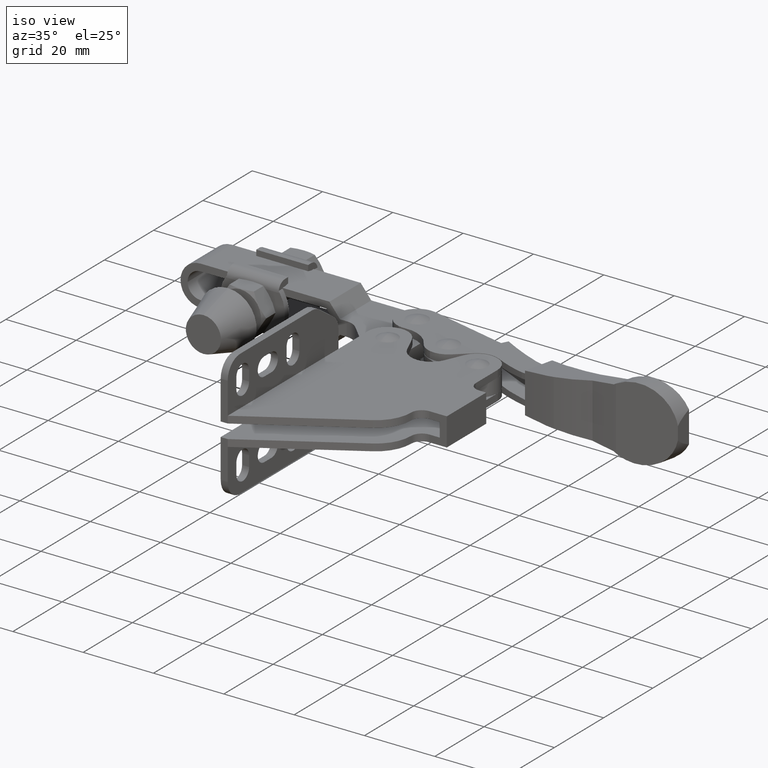
[diagram: clean part render]
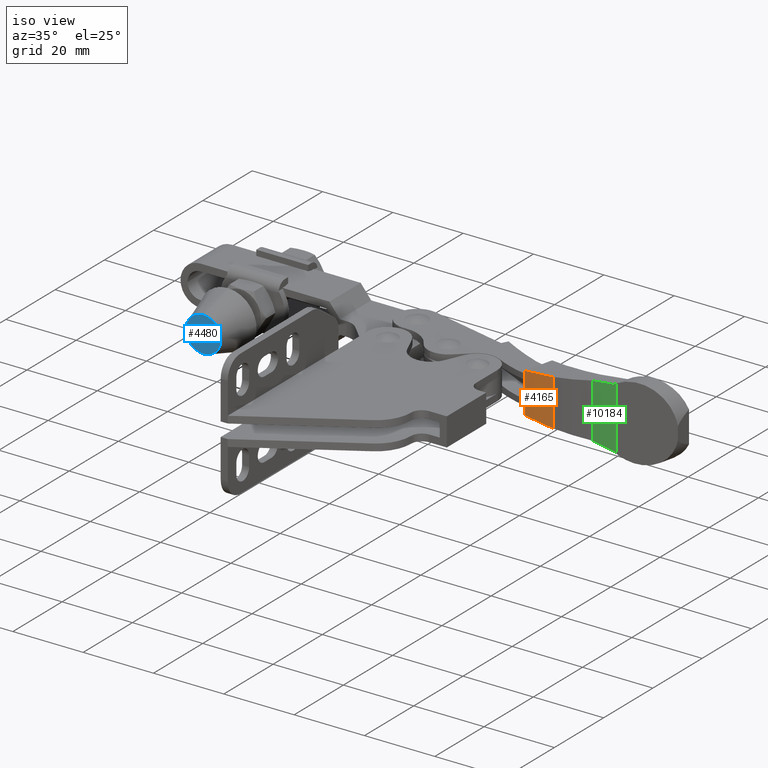
[diagram: same view with three faces highlighted in distinct colors, each labeled with its STEP entity id]
A machine part, iso view with three faces highlighted in distinct colors.
Their STEP definitions:

[orange] entity #4165 — the highlighted cylindrical surface (partial cylindrical patch) has radius 41.5529 mm, axis along (-0, 0, 1).
#16 = VERTEX_POINT ( 'NONE', #4601 ) ;
#599 = EDGE_CURVE ( 'NONE', #8615, #1904, #10774, .T. ) ;
#693 = VERTEX_POINT ( 'NONE', #2606 ) ;
#706 = CARTESIAN_POINT ( 'NONE',  ( 12.04694528802267000, 19.43993631463526800, 4.123857491433503800 ) ) ;
#914 = CARTESIAN_POINT ( 'NONE',  ( 7.588572235215959700, 20.03447382001400000, 3.749538697489254200 ) ) ;
#931 = CYLINDRICAL_SURFACE ( 'NONE', #3315, 41.55285523613284900 ) ;
#1352 = CARTESIAN_POINT ( 'NONE',  ( 14.75278981845948300, 60.96507074572419800, -24.50000000000008500 ) ) ;
#1576 = EDGE_CURVE ( 'NONE', #1904, #693, #10457, .T. ) ;
#1608 = CARTESIAN_POINT ( 'NONE',  ( 16.14530725229687400, 19.43555505541699800, 4.631027056434120900 ) ) ;
#1783 = VERTEX_POINT ( 'NONE', #5239 ) ;
#1834 = CARTESIAN_POINT ( 'NONE',  ( 14.28702906679042100, 19.41482591856081500, 4.447964301841707000 ) ) ;
#1904 = VERTEX_POINT ( 'NONE', #914 ) ;
#2251 = ORIENTED_EDGE ( 'NONE', *, *, #10083, .F. ) ;
#2606 = CARTESIAN_POINT ( 'NONE',  ( 14.28702906679042100, 19.41482591856081500, 4.447964301841707000 ) ) ;
#2703 = EDGE_CURVE ( 'NONE', #3620, #1783, #3673, .T. ) ;
#2849 = CARTESIAN_POINT ( 'NONE',  ( 7.588572235215959700, 20.03447382001400000, -7.749538697489423800 ) ) ;
#3106 = B_SPLINE_CURVE_WITH_KNOTS ( 'NONE', 3,
 ( #3864, #8455, #6312, #5720 ),
 .UNSPECIFIED., .F., .F.,
 ( 4, 4 ),
 ( 6.938893903907228400E-018, 0.001867388412720517000 ),
 .UNSPECIFIED. ) ;
#3254 = EDGE_CURVE ( 'NONE', #3620, #16, #3106, .T. ) ;
#3315 = AXIS2_PLACEMENT_3D ( 'NONE', #1352, #6903, #3803 ) ;
#3411 = CARTESIAN_POINT ( 'NONE',  ( 9.814196516200057700, 19.64491545035571100, -7.888982890281489800 ) ) ;
#3578 = FACE_OUTER_BOUND ( 'NONE', #10186, .T. ) ;
#3620 = VERTEX_POINT ( 'NONE', #6158 ) ;
#3673 = LINE ( 'NONE', #10579, #3809 ) ;
#3803 = DIRECTION ( 'NONE',  ( -0.2273152359232463400, -0.9738212276989851600, 0.0000000000000000000 ) ) ;
#3809 = VECTOR ( 'NONE', #10096, 1000.000000000000000 ) ;
#3864 = CARTESIAN_POINT ( 'NONE',  ( 16.14530725229687400, 19.43555505541699800, -8.631027056434227500 ) ) ;
#4165 = ADVANCED_FACE ( 'NONE', ( #3578 ), #931, .T. ) ;
#4601 = CARTESIAN_POINT ( 'NONE',  ( 14.28702906679042800, 19.41482591856081900, -8.447964301841883700 ) ) ;
#4724 = VECTOR ( 'NONE', #8769, 1000.000000000000000 ) ;
#4800 = EDGE_CURVE ( 'NONE', #16, #8615, #5163, .T. ) ;
#5163 = B_SPLINE_CURVE_WITH_KNOTS ( 'NONE', 3,
 ( #9325, #9463, #3411, #2849 ),
 .UNSPECIFIED., .F., .F.,
 ( 4, 4 ),
 ( 6.938893903907228400E-018, 0.006763215638367388800 ),
 .UNSPECIFIED. ) ;
#5239 = CARTESIAN_POINT ( 'NONE',  ( 16.14530725229687400, 19.43555505541699800, 4.631027056434120900 ) ) ;
#5414 = ORIENTED_EDGE ( 'NONE', *, *, #4800, .F. ) ;
#5447 = ORIENTED_EDGE ( 'NONE', *, *, #2703, .T. ) ;
#5546 = CARTESIAN_POINT ( 'NONE',  ( 15.52615591210867900, 19.41479442238132300, 4.568785837510017000 ) ) ;
#5720 = CARTESIAN_POINT ( 'NONE',  ( 14.28702906679042800, 19.41482591856081900, -8.447964301841883700 ) ) ;
#5850 = ORIENTED_EDGE ( 'NONE', *, *, #3254, .F. ) ;
#6158 = CARTESIAN_POINT ( 'NONE',  ( 16.14530725229687400, 19.43555505541699800, -8.631027056434227500 ) ) ;
#6312 = CARTESIAN_POINT ( 'NONE',  ( 14.90673156297327900, 19.40787931447618700, -8.507748144592120800 ) ) ;
#6831 = ORIENTED_EDGE ( 'NONE', *, *, #1576, .F. ) ;
#6903 = DIRECTION ( 'NONE',  ( -8.501633020125902000E-021, 2.561732651537147600E-021, 1.000000000000000000 ) ) ;
#8455 = CARTESIAN_POINT ( 'NONE',  ( 15.52615591210869700, 19.41479442238132300, -8.568785837510084500 ) ) ;
#8468 = CARTESIAN_POINT ( 'NONE',  ( 7.588572235215959700, 20.03447382001400000, 3.749538697489254200 ) ) ;
#8615 = VERTEX_POINT ( 'NONE', #9186 ) ;
#8769 = DIRECTION ( 'NONE',  ( -8.501633020125902000E-021, 2.561732651537147600E-021, 1.000000000000000000 ) ) ;
#9021 = CARTESIAN_POINT ( 'NONE',  ( 7.588572235215959700, 20.03447382001400000, -24.50000000000008500 ) ) ;
#9179 = ORIENTED_EDGE ( 'NONE', *, *, #599, .F. ) ;
#9186 = CARTESIAN_POINT ( 'NONE',  ( 7.588572235215959700, 20.03447382001400000, -7.749538697489423800 ) ) ;
#9325 = CARTESIAN_POINT ( 'NONE',  ( 14.28702906679042800, 19.41482591856081900, -8.447964301841883700 ) ) ;
#9463 = CARTESIAN_POINT ( 'NONE',  ( 12.04694528802267200, 19.43993631463526800, -8.123857491433678700 ) ) ;
#10083 = EDGE_CURVE ( 'NONE', #693, #1783, #10482, .T. ) ;
#10096 = DIRECTION ( 'NONE',  ( -8.501633020125902000E-021, 2.561732651537147600E-021, 1.000000000000000000 ) ) ;
#10185 = CARTESIAN_POINT ( 'NONE',  ( 14.90673156297312800, 19.40787931447619400, 4.507748144591915600 ) ) ;
#10186 = EDGE_LOOP ( 'NONE', ( #6831, #9179, #5414, #5850, #5447, #2251 ) ) ;
#10332 = CARTESIAN_POINT ( 'NONE',  ( 9.814196516200045300, 19.64491545035572200, 3.888982890281324600 ) ) ;
#10457 = B_SPLINE_CURVE_WITH_KNOTS ( 'NONE', 3,
 ( #8468, #10332, #706, #10679 ),
 .UNSPECIFIED., .F., .F.,
 ( 4, 4 ),
 ( 1.480243719774802400E-017, 0.006763215638367357600 ),
 .UNSPECIFIED. ) ;
#10482 = B_SPLINE_CURVE_WITH_KNOTS ( 'NONE', 3,
 ( #1834, #10185, #5546, #1608 ),
 .UNSPECIFIED., .F., .F.,
 ( 4, 4 ),
 ( 1.097820954441604300E-016, 0.001867388412720647800 ),
 .UNSPECIFIED. ) ;
#10579 = CARTESIAN_POINT ( 'NONE',  ( 16.14530725229687400, 19.43555505541699800, -24.50000000000008500 ) ) ;
#10679 = CARTESIAN_POINT ( 'NONE',  ( 14.28702906679042100, 19.41482591856081500, 4.447964301841707000 ) ) ;
#10774 = LINE ( 'NONE', #9021, #4724 ) ;

[blue] entity #4480 — the highlighted planar face has unit normal (0, -1, 0).
#284 = CIRCLE ( 'NONE', #8638, 5.000000000000000000 ) ;
#719 = ORIENTED_EDGE ( 'NONE', *, *, #3645, .T. ) ;
#2187 = DIRECTION ( 'NONE',  ( 0.0000000000000000000, -1.000000000000000000, -0.0000000000000000000 ) ) ;
#2208 = CARTESIAN_POINT ( 'NONE',  ( -72.27204002719213300, 3.480000000000217600, -6.999999999999755800 ) ) ;
#3149 = EDGE_CURVE ( 'NONE', #6342, #3611, #7718, .T. ) ;
#3264 = CARTESIAN_POINT ( 'NONE',  ( -72.27204002719213300, 3.480000000000217600, -1.999999999999755500 ) ) ;
#3401 = FACE_OUTER_BOUND ( 'NONE', #3475, .T. ) ;
#3475 = EDGE_LOOP ( 'NONE', ( #9331, #719 ) ) ;
#3611 = VERTEX_POINT ( 'NONE', #2208 ) ;
#3645 = EDGE_CURVE ( 'NONE', #3611, #6342, #284, .T. ) ;
#4480 = ADVANCED_FACE ( 'NONE', ( #3401 ), #5406, .T. ) ;
#5406 = PLANE ( 'NONE',  #8812 ) ;
#5634 = CARTESIAN_POINT ( 'NONE',  ( -72.27204002719213300, 3.480000000000217600, -1.999999999999755500 ) ) ;
#5762 = DIRECTION ( 'NONE',  ( 0.0000000000000000000, 0.0000000000000000000, -1.000000000000000000 ) ) ;
#5811 = DIRECTION ( 'NONE',  ( 0.0000000000000000000, 0.0000000000000000000, -1.000000000000000000 ) ) ;
#6342 = VERTEX_POINT ( 'NONE', #9907 ) ;
#6915 = DIRECTION ( 'NONE',  ( -0.0000000000000000000, -1.000000000000000000, -0.0000000000000000000 ) ) ;
#7718 = CIRCLE ( 'NONE', #10398, 5.000000000000000000 ) ;
#8315 = DIRECTION ( 'NONE',  ( 0.0000000000000000000, 0.0000000000000000000, -1.000000000000000000 ) ) ;
#8638 = AXIS2_PLACEMENT_3D ( 'NONE', #3264, #9104, #8315 ) ;
#8812 = AXIS2_PLACEMENT_3D ( 'NONE', #10053, #2187, #5811 ) ;
#9104 = DIRECTION ( 'NONE',  ( -0.0000000000000000000, -1.000000000000000000, -0.0000000000000000000 ) ) ;
#9331 = ORIENTED_EDGE ( 'NONE', *, *, #3149, .T. ) ;
#9907 = CARTESIAN_POINT ( 'NONE',  ( -72.27204002719213300, 3.480000000000217600, 3.000000000000244700 ) ) ;
#10053 = CARTESIAN_POINT ( 'NONE',  ( -67.27204002719213300, 3.480000000000218000, -1.999999999999755500 ) ) ;
#10398 = AXIS2_PLACEMENT_3D ( 'NONE', #5634, #6915, #5762 ) ;

[green] entity #10184 — the highlighted cylindrical surface (partial cylindrical patch) has radius 51.8035 mm, axis along (-0, 0, 1).
#436 = CARTESIAN_POINT ( 'NONE',  ( 26.05880298282687600, 21.06250147665629800, 5.722492895900964000 ) ) ;
#534 = DIRECTION ( 'NONE',  ( -8.501633020125902000E-021, 2.561732651537147600E-021, 1.000000000000000000 ) ) ;
#780 = EDGE_CURVE ( 'NONE', #8236, #6115, #6871, .T. ) ;
#896 = FACE_OUTER_BOUND ( 'NONE', #7154, .T. ) ;
#1281 = CARTESIAN_POINT ( 'NONE',  ( 32.43116450689047500, 20.68107102747750000, 6.605724985041725900 ) ) ;
#1324 = CARTESIAN_POINT ( 'NONE',  ( 26.05880298282687600, 21.06250147665629800, -9.722492895901071500 ) ) ;
#1430 = CARTESIAN_POINT ( 'NONE',  ( 33.03773387666172600, 20.68575588917297700, -24.50000000000008500 ) ) ;
#1497 = ORIENTED_EDGE ( 'NONE', *, *, #5062, .F. ) ;
#2126 = CARTESIAN_POINT ( 'NONE',  ( 32.62908847628796100, 20.68144087856286400, 6.739035168028607400 ) ) ;
#2338 = CARTESIAN_POINT ( 'NONE',  ( 33.03773387666172600, 20.68575588917297700, -10.98515282656038000 ) ) ;
#2612 = VECTOR ( 'NONE', #534, 1000.000000000000000 ) ;
#2641 = CARTESIAN_POINT ( 'NONE',  ( 26.05880298282687600, 21.06250147665629800, 5.722492895900964000 ) ) ;
#3238 = ORIENTED_EDGE ( 'NONE', *, *, #4355, .F. ) ;
#3440 = CARTESIAN_POINT ( 'NONE',  ( 33.03773387666172600, 20.68575588917297700, -10.98515282656038000 ) ) ;
#3511 = B_SPLINE_CURVE_WITH_KNOTS ( 'NONE', 3,
 ( #8472, #2126, #6410, #6884 ),
 .UNSPECIFIED., .F., .F.,
 ( 4, 4 ),
 ( 7.410741937918042400E-018, 0.0007154815407773902200 ),
 .UNSPECIFIED. ) ;
#3632 = ORIENTED_EDGE ( 'NONE', *, *, #8465, .F. ) ;
#3989 = VERTEX_POINT ( 'NONE', #6754 ) ;
#4083 = CARTESIAN_POINT ( 'NONE',  ( 30.30138576244236900, 20.67709121147732500, -10.29551086515643600 ) ) ;
#4197 = CARTESIAN_POINT ( 'NONE',  ( 33.03773387666172600, 20.68575588917297700, 6.985152826560210700 ) ) ;
#4267 = CARTESIAN_POINT ( 'NONE',  ( 32.33436203267499600, 72.48443379224649200, -24.50000000000008500 ) ) ;
#4355 = EDGE_CURVE ( 'NONE', #5031, #8236, #8711, .T. ) ;
#4470 = VERTEX_POINT ( 'NONE', #4197 ) ;
#4475 = CYLINDRICAL_SURFACE ( 'NONE', #9876, 51.80345320977424000 ) ;
#4778 = VERTEX_POINT ( 'NONE', #2641 ) ;
#5031 = VERTEX_POINT ( 'NONE', #2338 ) ;
#5062 = EDGE_CURVE ( 'NONE', #4778, #3989, #9722, .T. ) ;
#5219 = ORIENTED_EDGE ( 'NONE', *, *, #10354, .F. ) ;
#5431 = CARTESIAN_POINT ( 'NONE',  ( 32.43116450689030500, 20.68107102747749300, -10.60572498504183300 ) ) ;
#5628 = CARTESIAN_POINT ( 'NONE',  ( 32.83129093346564500, 20.68295261002547400, -10.86549148078390700 ) ) ;
#5654 = VECTOR ( 'NONE', #5690, 1000.000000000000000 ) ;
#5690 = DIRECTION ( 'NONE',  ( -8.501633020125902000E-021, 2.561732651537147600E-021, 1.000000000000000000 ) ) ;
#6115 = VERTEX_POINT ( 'NONE', #10551 ) ;
#6410 = CARTESIAN_POINT ( 'NONE',  ( 32.83129093346569500, 20.68295261002547400, 6.865491480783791000 ) ) ;
#6418 = CARTESIAN_POINT ( 'NONE',  ( 30.30138576244248200, 20.67709121147731500, 6.295510865156307600 ) ) ;
#6499 = ORIENTED_EDGE ( 'NONE', *, *, #7743, .T. ) ;
#6548 = CARTESIAN_POINT ( 'NONE',  ( 26.05880298282687600, 21.06250147665629800, -24.50000000000008500 ) ) ;
#6659 = DIRECTION ( 'NONE',  ( -0.2273152359232463400, -0.9738212276989852700, 0.0000000000000000000 ) ) ;
#6754 = CARTESIAN_POINT ( 'NONE',  ( 32.43116450689047500, 20.68107102747750000, 6.605724985041725900 ) ) ;
#6871 = B_SPLINE_CURVE_WITH_KNOTS ( 'NONE', 3,
 ( #10154, #4083, #10266, #1324 ),
 .UNSPECIFIED., .F., .F.,
 ( 4, 4 ),
 ( 0.0000000000000000000, 0.006444577527209424500 ),
 .UNSPECIFIED. ) ;
#6884 = CARTESIAN_POINT ( 'NONE',  ( 33.03773387666172600, 20.68575588917297700, 6.985152826560210700 ) ) ;
#7107 = LINE ( 'NONE', #1430, #2612 ) ;
#7154 = EDGE_LOOP ( 'NONE', ( #1497, #3632, #9547, #3238, #6499, #5219 ) ) ;
#7187 = CARTESIAN_POINT ( 'NONE',  ( 32.62908847628790500, 20.68144087856285300, -10.73903516802872100 ) ) ;
#7743 = EDGE_CURVE ( 'NONE', #5031, #4470, #7107, .T. ) ;
#8017 = LINE ( 'NONE', #6548, #5654 ) ;
#8236 = VERTEX_POINT ( 'NONE', #5431 ) ;
#8465 = EDGE_CURVE ( 'NONE', #6115, #4778, #8017, .T. ) ;
#8472 = CARTESIAN_POINT ( 'NONE',  ( 32.43116450689047500, 20.68107102747750000, 6.605724985041725900 ) ) ;
#8711 = B_SPLINE_CURVE_WITH_KNOTS ( 'NONE', 3,
 ( #3440, #5628, #7187, #9378 ),
 .UNSPECIFIED., .F., .F.,
 ( 4, 4 ),
 ( 7.152448122690996000E-018, 0.0007154815407775558900 ),
 .UNSPECIFIED. ) ;
#9378 = CARTESIAN_POINT ( 'NONE',  ( 32.43116450689030500, 20.68107102747749300, -10.60572498504183300 ) ) ;
#9525 = DIRECTION ( 'NONE',  ( -8.501633020125902000E-021, 2.561732651537147600E-021, 1.000000000000000000 ) ) ;
#9547 = ORIENTED_EDGE ( 'NONE', *, *, #780, .F. ) ;
#9722 = B_SPLINE_CURVE_WITH_KNOTS ( 'NONE', 3,
 ( #436, #10365, #6418, #1281 ),
 .UNSPECIFIED., .F., .F.,
 ( 4, 4 ),
 ( 0.0000000000000000000, 0.006444577527209586700 ),
 .UNSPECIFIED. ) ;
#9876 = AXIS2_PLACEMENT_3D ( 'NONE', #4267, #9525, #6659 ) ;
#10154 = CARTESIAN_POINT ( 'NONE',  ( 32.43116450689030500, 20.68107102747749300, -10.60572498504183300 ) ) ;
#10184 = ADVANCED_FACE ( 'NONE', ( #896 ), #4475, .T. ) ;
#10266 = CARTESIAN_POINT ( 'NONE',  ( 28.17730242176463000, 20.80395871625339800, -10.00071282973600400 ) ) ;
#10354 = EDGE_CURVE ( 'NONE', #3989, #4470, #3511, .T. ) ;
#10365 = CARTESIAN_POINT ( 'NONE',  ( 28.17730242176467900, 20.80395871625338700, 6.000712829735866700 ) ) ;
#10551 = CARTESIAN_POINT ( 'NONE',  ( 26.05880298282687600, 21.06250147665629800, -9.722492895901071500 ) ) ;